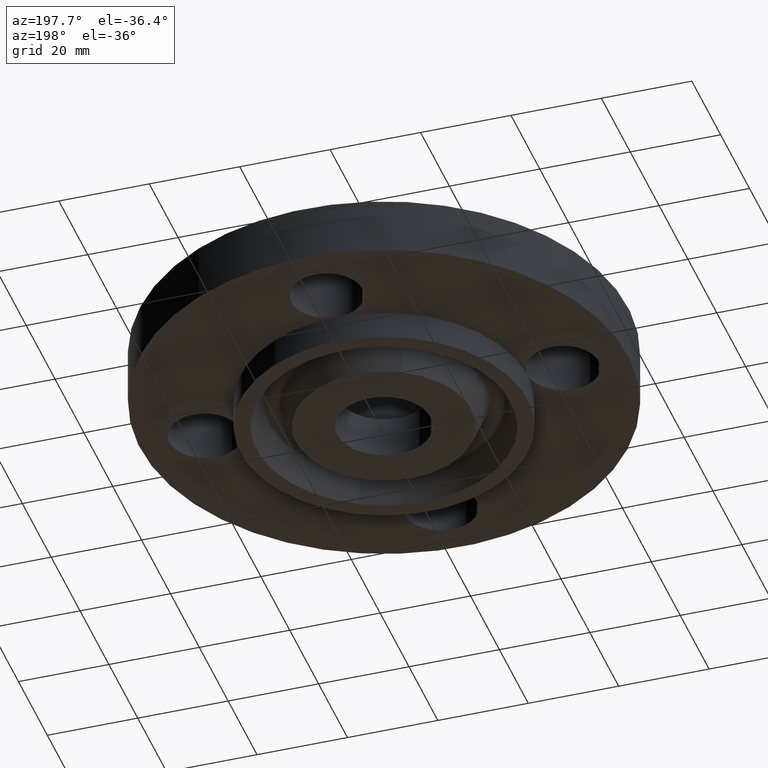
[diagram: clean part render]
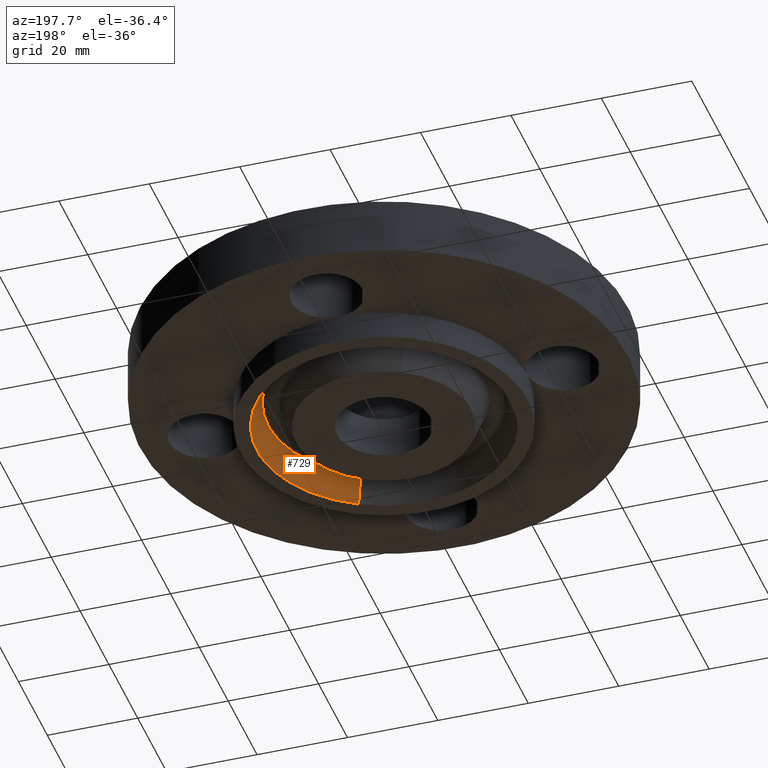
[diagram: same view with one face highlighted and labeled with its STEP entity id]
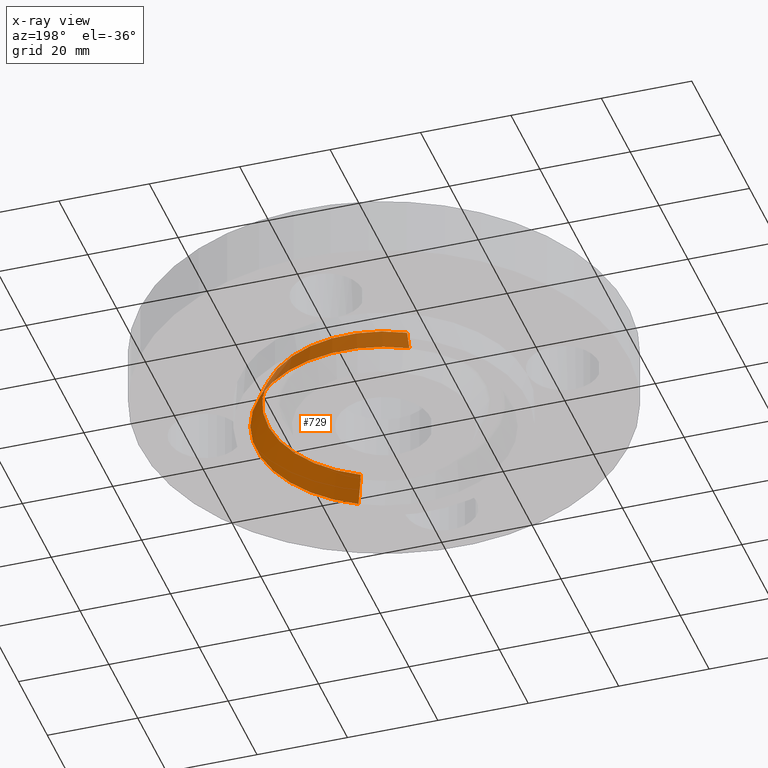
[diagram: x-ray of the same camera — body ghosted, the highlighted face saturated]
A machine part, auxiliary view. The second image highlights one B-rep face of the part: STEP entity #729.
The next image is the same camera in x-ray: the body ghosted, the highlighted face saturated — about 0% of this face is hidden behind the body in this view.
In plain terms, the highlighted conical surface has half-angle 23 deg.
Its self-contained STEP definition (entity closure, byte-faithful):
#220=AXIS2_PLACEMENT_3D('Circle Axis2P3D',#218,#219,$) ;
#702=AXIS2_PLACEMENT_3D('Cone Axis2P3D',#699,#700,#701) ;
#713=AXIS2_PLACEMENT_3D('Circle Axis2P3D',#711,#712,$) ;
#213=CARTESIAN_POINT('Vertex',(0.531862706891,-0.973568154601,-0.250000000001)) ;
#215=CARTESIAN_POINT('Vertex',(-0.531862706891,0.973568154601,-0.250000000001)) ;
#218=CARTESIAN_POINT('Axis2P3D Location',(6.99353086378E-017,3.49676543189E-016,-0.250000000001)) ;
#699=CARTESIAN_POINT('Axis2P3D Location',(0.,0.,-0.0190396522348)) ;
#704=CARTESIAN_POINT('Line Origine',(0.508362021804,-0.930550439096,-0.134519826118)) ;
#708=CARTESIAN_POINT('Vertex',(0.484861336716,-0.887532723592,-0.0190396522348)) ;
#711=CARTESIAN_POINT('Axis2P3D Location',(0.,0.,-0.0190396522348)) ;
#715=CARTESIAN_POINT('Vertex',(-0.484861336716,0.887532723592,-0.0190396522348)) ;
#718=CARTESIAN_POINT('Line Origine',(-0.508362021804,0.930550439096,-0.134519826118)) ;
#219=DIRECTION('Axis2P3D Direction',(0.,0.,-0.0393700787402)) ;
#700=DIRECTION('Axis2P3D Direction',(-0.,-0.,-0.0393700787402)) ;
#701=DIRECTION('Axis2P3D XDirection',(0.0188750212049,-0.0345504945626,0.)) ;
#705=DIRECTION('Vector Direction',(0.00737505833565,-0.0134999537303,-0.0362403485611)) ;
#712=DIRECTION('Axis2P3D Direction',(0.,0.,-0.0393700787402)) ;
#719=DIRECTION('Vector Direction',(-0.00737505833565,0.0134999537303,-0.0362403485611)) ;
#706=VECTOR('Line Direction',#705,0.0393700787402) ;
#720=VECTOR('Line Direction',#719,0.0393700787402) ;
#724=ORIENTED_EDGE('',*,*,#222,.T.) ;
#725=ORIENTED_EDGE('',*,*,#710,.T.) ;
#726=ORIENTED_EDGE('',*,*,#717,.T.) ;
#727=ORIENTED_EDGE('',*,*,#722,.F.) ;
#729=ADVANCED_FACE('PartBody',(#728),#703,.F.) ;
#221=CIRCLE('generated circle',#220,1.109375) ;
#714=CIRCLE('generated circle',#713,1.01133814883) ;
#703=CONICAL_SURFACE('Cone',#702,1.01133814883,0.401425727959) ;
#222=EDGE_CURVE('',#216,#214,#221,.T.) ;
#710=EDGE_CURVE('',#214,#709,#707,.F.) ;
#717=EDGE_CURVE('',#709,#716,#714,.F.) ;
#722=EDGE_CURVE('',#216,#716,#721,.F.) ;
#723=EDGE_LOOP('',(#724,#725,#726,#727)) ;
#728=FACE_OUTER_BOUND('',#723,.T.) ;
#707=LINE('Line',#704,#706) ;
#721=LINE('Line',#718,#720) ;
#214=VERTEX_POINT('',#213) ;
#216=VERTEX_POINT('',#215) ;
#709=VERTEX_POINT('',#708) ;
#716=VERTEX_POINT('',#715) ;